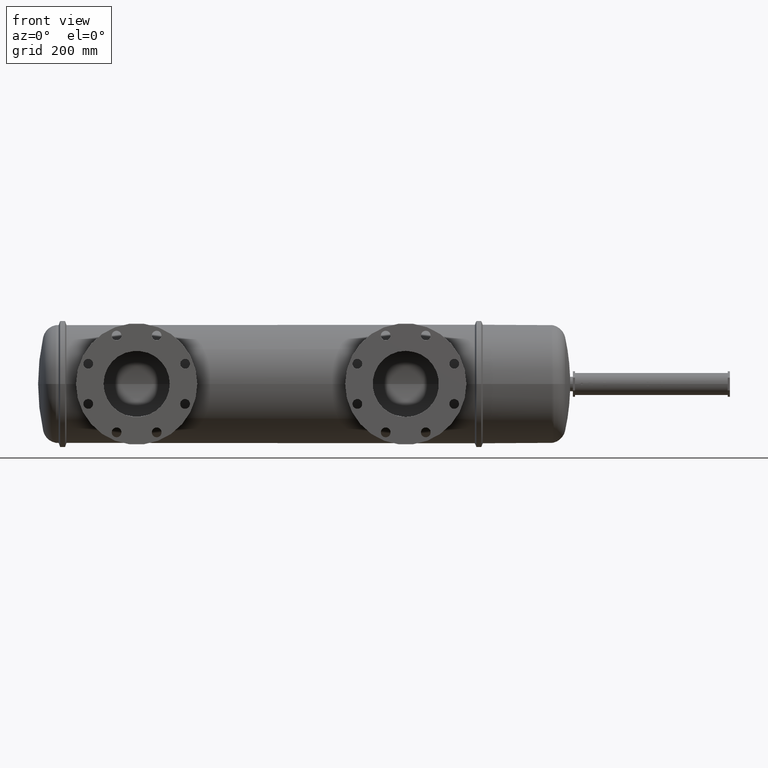
[diagram: clean part render]
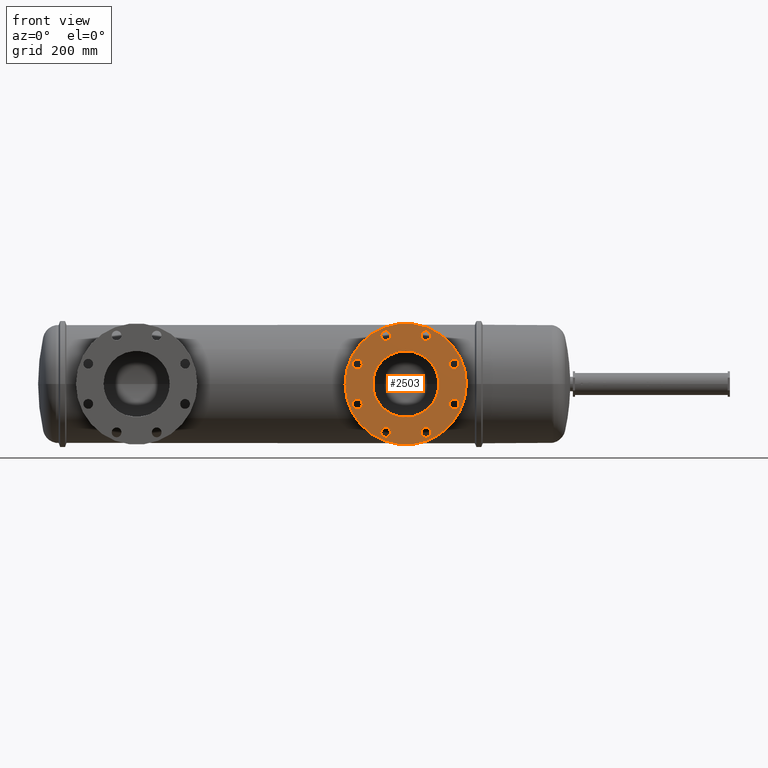
[diagram: same view with one face highlighted and labeled with its STEP entity id]
A machine part, front view. The second image highlights one B-rep face of the part: STEP entity #2503.
In plain terms, the highlighted planar face has unit normal (-0, 1, 0).
Its self-contained STEP definition (entity closure, byte-faithful):
#22 = ORIENTED_EDGE ( 'NONE', *, *, #6361, .F. ) ;
#100 = AXIS2_PLACEMENT_3D ( 'NONE', #6608, #6005, #212 ) ;
#106 = CARTESIAN_POINT ( 'NONE',  ( 35.15007573427045900, -10.37999999999999700, 4.388427779428623100 ) ) ;
#113 = AXIS2_PLACEMENT_3D ( 'NONE', #4492, #6167, #456 ) ;
#128 = FACE_BOUND ( 'NONE', #7385, .T. ) ;
#181 = CARTESIAN_POINT ( 'NONE',  ( 38.16075720996495600, -10.37999999999999700, 1.817746303734233400 ) ) ;
#193 = DIRECTION ( 'NONE',  ( 1.000000000000000000, 0.0000000000000000000, 0.0000000000000000000 ) ) ;
#203 = DIRECTION ( 'NONE',  ( 1.000000000000000000, 0.0000000000000000000, 0.0000000000000000000 ) ) ;
#212 = DIRECTION ( 'NONE',  ( 0.0000000000000000000, 0.0000000000000000000, 1.000000000000000000 ) ) ;
#267 = AXIS2_PLACEMENT_3D ( 'NONE', #106, #6988, #2313 ) ;
#282 = DIRECTION ( 'NONE',  ( 1.000000000000000000, 0.0000000000000000000, 0.0000000000000000000 ) ) ;
#303 = DIRECTION ( 'NONE',  ( 1.052735257674089800E-016, -1.000000000000000000, 0.0000000000000000000 ) ) ;
#314 = DIRECTION ( 'NONE',  ( 1.052735257674089800E-016, -1.000000000000000000, 0.0000000000000000000 ) ) ;
#320 = CIRCLE ( 'NONE', #7164, 0.4399999999999985600 ) ;
#347 = VERTEX_POINT ( 'NONE', #6941 ) ;
#387 = DIRECTION ( 'NONE',  ( 1.052735257674089800E-016, -1.000000000000000000, 0.0000000000000000000 ) ) ;
#414 = DIRECTION ( 'NONE',  ( 0.0000000000000000000, 0.0000000000000000000, 1.000000000000000000 ) ) ;
#453 = DIRECTION ( 'NONE',  ( 1.052735257674089800E-016, -1.000000000000000000, 0.0000000000000000000 ) ) ;
#456 = DIRECTION ( 'NONE',  ( 1.000000000000000000, 0.0000000000000000000, 0.0000000000000000000 ) ) ;
#459 = CARTESIAN_POINT ( 'NONE',  ( 34.71007573427046100, -10.37999999999999700, 4.388427779428623100 ) ) ;
#478 = FACE_BOUND ( 'NONE', #4754, .T. ) ;
#592 = VERTEX_POINT ( 'NONE', #4882 ) ;
#670 = FACE_BOUND ( 'NONE', #1909, .T. ) ;
#673 = EDGE_CURVE ( 'NONE', #3064, #2083, #6018, .T. ) ;
#732 = CARTESIAN_POINT ( 'NONE',  ( 28.50390165110774300, -10.38000000000000100, 1.817746303734104400 ) ) ;
#778 = AXIS2_PLACEMENT_3D ( 'NONE', #5083, #387, #2666 ) ;
#855 = CIRCLE ( 'NONE', #113, 0.4400000000000029400 ) ;
#874 = ORIENTED_EDGE ( 'NONE', *, *, #5406, .T. ) ;
#875 = CARTESIAN_POINT ( 'NONE',  ( 31.51458312680216200, -10.37999999999999700, 4.388427779428569800 ) ) ;
#942 = ORIENTED_EDGE ( 'NONE', *, *, #2409, .F. ) ;
#972 = EDGE_CURVE ( 'NONE', #5213, #3562, #7450, .T. ) ;
#976 = PLANE ( 'NONE',  #5619 ) ;
#978 = VERTEX_POINT ( 'NONE', #4019 ) ;
#996 = CARTESIAN_POINT ( 'NONE',  ( 0.0000000000000000000, -10.38000000000000100, 0.0000000000000000000 ) ) ;
#1000 = CARTESIAN_POINT ( 'NONE',  ( 33.33232943053631200, -10.38000000000000100, 0.0000000000000000000 ) ) ;
#1044 = CARTESIAN_POINT ( 'NONE',  ( 31.51458312680226500, -10.37999999999999700, -4.388427779428663000 ) ) ;
#1094 = EDGE_CURVE ( 'NONE', #3562, #5213, #2263, .T. ) ;
#1118 = ORIENTED_EDGE ( 'NONE', *, *, #3966, .F. ) ;
#1169 = DIRECTION ( 'NONE',  ( 1.000000000000000000, 0.0000000000000000000, 0.0000000000000000000 ) ) ;
#1184 = VERTEX_POINT ( 'NONE', #7339 ) ;
#1185 = AXIS2_PLACEMENT_3D ( 'NONE', #7074, #1839, #193 ) ;
#1208 = ORIENTED_EDGE ( 'NONE', *, *, #1316, .F. ) ;
#1217 = CIRCLE ( 'NONE', #6153, 0.4400000000000029400 ) ;
#1280 = FACE_BOUND ( 'NONE', #2457, .T. ) ;
#1295 = VERTEX_POINT ( 'NONE', #6772 ) ;
#1313 = VERTEX_POINT ( 'NONE', #5641 ) ;
#1316 = EDGE_CURVE ( 'NONE', #2590, #1313, #3040, .T. ) ;
#1337 = CARTESIAN_POINT ( 'NONE',  ( 28.94390165110778700, -10.38000000000000100, -1.817746303734255200 ) ) ;
#1453 = FACE_BOUND ( 'NONE', #6656, .T. ) ;
#1474 = CARTESIAN_POINT ( 'NONE',  ( 37.72075720996495100, -10.37999999999999700, 1.817746303734233400 ) ) ;
#1663 = AXIS2_PLACEMENT_3D ( 'NONE', #2989, #3636, #203 ) ;
#1745 = VERTEX_POINT ( 'NONE', #4068 ) ;
#1827 = CIRCLE ( 'NONE', #1663, 0.4400000000000029400 ) ;
#1828 = EDGE_CURVE ( 'NONE', #1295, #7146, #6654, .T. ) ;
#1839 = DIRECTION ( 'NONE',  ( 1.052735257674089800E-016, -1.000000000000000000, 0.0000000000000000000 ) ) ;
#1850 = AXIS2_PLACEMENT_3D ( 'NONE', #875, #303, #7165 ) ;
#1909 = EDGE_LOOP ( 'NONE', ( #6199, #4803 ) ) ;
#1978 = DIRECTION ( 'NONE',  ( 1.000000000000000000, 0.0000000000000000000, 0.0000000000000000000 ) ) ;
#1994 = CIRCLE ( 'NONE', #1185, 5.500000000000001800 ) ;
#2083 = VERTEX_POINT ( 'NONE', #6669 ) ;
#2087 = CIRCLE ( 'NONE', #2284, 0.4400000000000029400 ) ;
#2135 = CARTESIAN_POINT ( 'NONE',  ( 31.95458312680216700, -10.37999999999999700, 4.388427779428569800 ) ) ;
#2138 = CARTESIAN_POINT ( 'NONE',  ( 37.28075720996494600, -10.37999999999999700, 1.817746303734233400 ) ) ;
#2162 = FACE_BOUND ( 'NONE', #4948, .T. ) ;
#2239 = DIRECTION ( 'NONE',  ( 1.000000000000000000, 0.0000000000000000000, 0.0000000000000000000 ) ) ;
#2253 = ORIENTED_EDGE ( 'NONE', *, *, #5315, .F. ) ;
#2263 = CIRCLE ( 'NONE', #5180, 0.4400000000000029400 ) ;
#2284 = AXIS2_PLACEMENT_3D ( 'NONE', #5955, #4223, #6507 ) ;
#2313 = DIRECTION ( 'NONE',  ( 1.000000000000000000, 0.0000000000000000000, 0.0000000000000000000 ) ) ;
#2368 = CARTESIAN_POINT ( 'NONE',  ( 35.15007573427062200, -10.37999999999999700, -4.388427779428610600 ) ) ;
#2385 = CIRCLE ( 'NONE', #5759, 3.000000000000001800 ) ;
#2409 = EDGE_CURVE ( 'NONE', #978, #5878, #855, .T. ) ;
#2457 = EDGE_LOOP ( 'NONE', ( #3054, #22 ) ) ;
#2503 = ADVANCED_FACE ( 'NONE', ( #1453, #478, #1280, #6827, #2162, #3726, #670, #6645, #128, #4912 ), #976, .F. ) ;
#2590 = VERTEX_POINT ( 'NONE', #2135 ) ;
#2637 = VERTEX_POINT ( 'NONE', #5668 ) ;
#2666 = DIRECTION ( 'NONE',  ( 1.000000000000000000, 0.0000000000000000000, 0.0000000000000000000 ) ) ;
#2716 = CARTESIAN_POINT ( 'NONE',  ( 28.94390165110774800, -10.38000000000000100, 1.817746303734104400 ) ) ;
#2791 = CARTESIAN_POINT ( 'NONE',  ( 35.15007573427062200, -10.37999999999999700, -4.388427779428610600 ) ) ;
#2824 = DIRECTION ( 'NONE',  ( 1.052735257674089800E-016, -1.000000000000000000, 0.0000000000000000000 ) ) ;
#2841 = CIRCLE ( 'NONE', #4989, 0.4400000000000029400 ) ;
#2877 = CARTESIAN_POINT ( 'NONE',  ( 33.33232943053631200, -10.37999999999999700, 0.0000000000000000000 ) ) ;
#2989 = CARTESIAN_POINT ( 'NONE',  ( 28.94390165110774800, -10.38000000000000100, 1.817746303734104400 ) ) ;
#3019 = VERTEX_POINT ( 'NONE', #181 ) ;
#3040 = CIRCLE ( 'NONE', #5330, 0.4400000000000029400 ) ;
#3054 = ORIENTED_EDGE ( 'NONE', *, *, #6680, .F. ) ;
#3064 = VERTEX_POINT ( 'NONE', #6439 ) ;
#3195 = DIRECTION ( 'NONE',  ( 1.000000000000000000, 0.0000000000000000000, 0.0000000000000000000 ) ) ;
#3229 = AXIS2_PLACEMENT_3D ( 'NONE', #2716, #6236, #6897 ) ;
#3285 = ORIENTED_EDGE ( 'NONE', *, *, #1828, .F. ) ;
#3339 = EDGE_CURVE ( 'NONE', #592, #347, #6997, .T. ) ;
#3378 = CIRCLE ( 'NONE', #3410, 0.4400000000000029400 ) ;
#3410 = AXIS2_PLACEMENT_3D ( 'NONE', #1337, #3714, #282 ) ;
#3418 = ORIENTED_EDGE ( 'NONE', *, *, #6074, .F. ) ;
#3462 = DIRECTION ( 'NONE',  ( 1.000000000000000000, 0.0000000000000000000, 0.0000000000000000000 ) ) ;
#3480 = CARTESIAN_POINT ( 'NONE',  ( 31.51458312680216200, -10.37999999999999700, 4.388427779428569800 ) ) ;
#3508 = CARTESIAN_POINT ( 'NONE',  ( 31.95458312680226600, -10.37999999999999700, -4.388427779428663000 ) ) ;
#3537 = CARTESIAN_POINT ( 'NONE',  ( 33.33232943053631200, -10.38000000000000100, 3.000000000000001800 ) ) ;
#3562 = VERTEX_POINT ( 'NONE', #5526 ) ;
#3614 = EDGE_LOOP ( 'NONE', ( #5926, #4568 ) ) ;
#3636 = DIRECTION ( 'NONE',  ( 1.052735257674089800E-016, -1.000000000000000000, 0.0000000000000000000 ) ) ;
#3682 = DIRECTION ( 'NONE',  ( 1.000000000000000000, 0.0000000000000000000, 0.0000000000000000000 ) ) ;
#3714 = DIRECTION ( 'NONE',  ( 1.052735257674089800E-016, -1.000000000000000000, 0.0000000000000000000 ) ) ;
#3726 = FACE_BOUND ( 'NONE', #6230, .T. ) ;
#3758 = ORIENTED_EDGE ( 'NONE', *, *, #6017, .F. ) ;
#3776 = CARTESIAN_POINT ( 'NONE',  ( 35.15007573427045900, -10.37999999999999700, 4.388427779428623100 ) ) ;
#3831 = ORIENTED_EDGE ( 'NONE', *, *, #5622, .F. ) ;
#3834 = EDGE_CURVE ( 'NONE', #6228, #3019, #2087, .T. ) ;
#3872 = ORIENTED_EDGE ( 'NONE', *, *, #972, .F. ) ;
#3966 = EDGE_CURVE ( 'NONE', #3019, #6228, #4179, .T. ) ;
#3974 = CARTESIAN_POINT ( 'NONE',  ( 28.50390165110778200, -10.38000000000000100, -1.817746303734255200 ) ) ;
#3995 = CIRCLE ( 'NONE', #3229, 0.4400000000000029400 ) ;
#4006 = CIRCLE ( 'NONE', #1850, 0.4400000000000029400 ) ;
#4019 = CARTESIAN_POINT ( 'NONE',  ( 31.07458312680226000, -10.37999999999999700, -4.388427779428663000 ) ) ;
#4068 = CARTESIAN_POINT ( 'NONE',  ( 37.28075720996501700, -10.37999999999999700, -1.817746303734125300 ) ) ;
#4070 = DIRECTION ( 'NONE',  ( 1.052735257674089800E-016, -1.000000000000000000, 0.0000000000000000000 ) ) ;
#4149 = DIRECTION ( 'NONE',  ( 1.000000000000000000, 0.0000000000000000000, 0.0000000000000000000 ) ) ;
#4179 = CIRCLE ( 'NONE', #5131, 0.4400000000000029400 ) ;
#4223 = DIRECTION ( 'NONE',  ( 1.052735257674089800E-016, -1.000000000000000000, 0.0000000000000000000 ) ) ;
#4244 = ORIENTED_EDGE ( 'NONE', *, *, #3834, .F. ) ;
#4258 = ORIENTED_EDGE ( 'NONE', *, *, #5158, .T. ) ;
#4324 = VERTEX_POINT ( 'NONE', #732 ) ;
#4492 = CARTESIAN_POINT ( 'NONE',  ( 31.51458312680226500, -10.37999999999999700, -4.388427779428663000 ) ) ;
#4568 = ORIENTED_EDGE ( 'NONE', *, *, #3339, .T. ) ;
#4587 = DIRECTION ( 'NONE',  ( 1.052735257674089800E-016, -1.000000000000000000, 0.0000000000000000000 ) ) ;
#4594 = ORIENTED_EDGE ( 'NONE', *, *, #1094, .F. ) ;
#4595 = DIRECTION ( 'NONE',  ( 1.052735257674089800E-016, -1.000000000000000000, 0.0000000000000000000 ) ) ;
#4657 = VERTEX_POINT ( 'NONE', #5239 ) ;
#4754 = EDGE_LOOP ( 'NONE', ( #1208, #3758 ) ) ;
#4803 = ORIENTED_EDGE ( 'NONE', *, *, #6722, .F. ) ;
#4882 = CARTESIAN_POINT ( 'NONE',  ( 27.83232943053631200, -10.37999999999999700, 6.735557395310442000E-016 ) ) ;
#4912 = FACE_OUTER_BOUND ( 'NONE', #3614, .T. ) ;
#4931 = CIRCLE ( 'NONE', #5996, 0.4399999999999985600 ) ;
#4948 = EDGE_LOOP ( 'NONE', ( #3831, #942 ) ) ;
#4989 = AXIS2_PLACEMENT_3D ( 'NONE', #2368, #6436, #4149 ) ;
#5083 = CARTESIAN_POINT ( 'NONE',  ( 28.94390165110778700, -10.38000000000000100, -1.817746303734255200 ) ) ;
#5086 = DIRECTION ( 'NONE',  ( 1.000000000000000000, 0.0000000000000000000, 0.0000000000000000000 ) ) ;
#5088 = DIRECTION ( 'NONE',  ( 0.0000000000000000000, 0.0000000000000000000, 1.000000000000000000 ) ) ;
#5131 = AXIS2_PLACEMENT_3D ( 'NONE', #1474, #314, #3195 ) ;
#5158 = EDGE_CURVE ( 'NONE', #6849, #2637, #2385, .T. ) ;
#5180 = AXIS2_PLACEMENT_3D ( 'NONE', #3776, #7300, #1978 ) ;
#5213 = VERTEX_POINT ( 'NONE', #459 ) ;
#5239 = CARTESIAN_POINT ( 'NONE',  ( 38.16075720996501300, -10.37999999999999700, -1.817746303734125300 ) ) ;
#5315 = EDGE_CURVE ( 'NONE', #2083, #3064, #2841, .T. ) ;
#5330 = AXIS2_PLACEMENT_3D ( 'NONE', #3480, #4587, #2239 ) ;
#5406 = EDGE_CURVE ( 'NONE', #2637, #6849, #5667, .T. ) ;
#5526 = CARTESIAN_POINT ( 'NONE',  ( 35.59007573427046400, -10.37999999999999700, 4.388427779428623100 ) ) ;
#5599 = ORIENTED_EDGE ( 'NONE', *, *, #673, .F. ) ;
#5613 = AXIS2_PLACEMENT_3D ( 'NONE', #2791, #4595, #5700 ) ;
#5619 = AXIS2_PLACEMENT_3D ( 'NONE', #996, #6207, #5088 ) ;
#5622 = EDGE_CURVE ( 'NONE', #5878, #978, #1217, .T. ) ;
#5641 = CARTESIAN_POINT ( 'NONE',  ( 31.07458312680216000, -10.37999999999999700, 4.388427779428569800 ) ) ;
#5667 = CIRCLE ( 'NONE', #100, 3.000000000000001800 ) ;
#5668 = CARTESIAN_POINT ( 'NONE',  ( 33.33232943053631200, -10.38000000000000100, -3.000000000000001800 ) ) ;
#5700 = DIRECTION ( 'NONE',  ( 1.000000000000000000, 0.0000000000000000000, 0.0000000000000000000 ) ) ;
#5759 = AXIS2_PLACEMENT_3D ( 'NONE', #1000, #6215, #414 ) ;
#5793 = CARTESIAN_POINT ( 'NONE',  ( 37.72075720996501500, -10.37999999999999700, -1.817746303734125300 ) ) ;
#5808 = AXIS2_PLACEMENT_3D ( 'NONE', #2877, #2824, #3462 ) ;
#5878 = VERTEX_POINT ( 'NONE', #3508 ) ;
#5926 = ORIENTED_EDGE ( 'NONE', *, *, #6896, .T. ) ;
#5955 = CARTESIAN_POINT ( 'NONE',  ( 37.72075720996495100, -10.37999999999999700, 1.817746303734233400 ) ) ;
#5996 = AXIS2_PLACEMENT_3D ( 'NONE', #5793, #4070, #1169 ) ;
#6005 = DIRECTION ( 'NONE',  ( -0.0000000000000000000, 1.000000000000000000, -0.0000000000000000000 ) ) ;
#6017 = EDGE_CURVE ( 'NONE', #1313, #2590, #4006, .T. ) ;
#6018 = CIRCLE ( 'NONE', #5613, 0.4400000000000029400 ) ;
#6074 = EDGE_CURVE ( 'NONE', #7146, #1295, #3378, .T. ) ;
#6153 = AXIS2_PLACEMENT_3D ( 'NONE', #1044, #453, #5086 ) ;
#6167 = DIRECTION ( 'NONE',  ( 1.052735257674089800E-016, -1.000000000000000000, 0.0000000000000000000 ) ) ;
#6199 = ORIENTED_EDGE ( 'NONE', *, *, #6981, .F. ) ;
#6207 = DIRECTION ( 'NONE',  ( -0.0000000000000000000, 1.000000000000000000, 0.0000000000000000000 ) ) ;
#6215 = DIRECTION ( 'NONE',  ( -0.0000000000000000000, 1.000000000000000000, -0.0000000000000000000 ) ) ;
#6228 = VERTEX_POINT ( 'NONE', #2138 ) ;
#6230 = EDGE_LOOP ( 'NONE', ( #5599, #2253 ) ) ;
#6236 = DIRECTION ( 'NONE',  ( 1.052735257674089800E-016, -1.000000000000000000, 0.0000000000000000000 ) ) ;
#6327 = EDGE_LOOP ( 'NONE', ( #1118, #4244 ) ) ;
#6361 = EDGE_CURVE ( 'NONE', #4324, #1184, #1827, .T. ) ;
#6436 = DIRECTION ( 'NONE',  ( 1.052735257674089800E-016, -1.000000000000000000, 0.0000000000000000000 ) ) ;
#6439 = CARTESIAN_POINT ( 'NONE',  ( 35.59007573427062700, -10.37999999999999700, -4.388427779428610600 ) ) ;
#6507 = DIRECTION ( 'NONE',  ( 1.000000000000000000, 0.0000000000000000000, 0.0000000000000000000 ) ) ;
#6551 = CARTESIAN_POINT ( 'NONE',  ( 37.72075720996501500, -10.37999999999999700, -1.817746303734125300 ) ) ;
#6608 = CARTESIAN_POINT ( 'NONE',  ( 33.33232943053631200, -10.38000000000000100, 0.0000000000000000000 ) ) ;
#6645 = FACE_BOUND ( 'NONE', #6327, .T. ) ;
#6654 = CIRCLE ( 'NONE', #778, 0.4400000000000029400 ) ;
#6656 = EDGE_LOOP ( 'NONE', ( #4258, #874 ) ) ;
#6669 = CARTESIAN_POINT ( 'NONE',  ( 34.71007573427061700, -10.37999999999999700, -4.388427779428610600 ) ) ;
#6680 = EDGE_CURVE ( 'NONE', #1184, #4324, #3995, .T. ) ;
#6722 = EDGE_CURVE ( 'NONE', #1745, #4657, #4931, .T. ) ;
#6772 = CARTESIAN_POINT ( 'NONE',  ( 29.38390165110778800, -10.38000000000000100, -1.817746303734255200 ) ) ;
#6827 = FACE_BOUND ( 'NONE', #7051, .T. ) ;
#6849 = VERTEX_POINT ( 'NONE', #3537 ) ;
#6896 = EDGE_CURVE ( 'NONE', #347, #592, #1994, .T. ) ;
#6897 = DIRECTION ( 'NONE',  ( 1.000000000000000000, 0.0000000000000000000, 0.0000000000000000000 ) ) ;
#6941 = CARTESIAN_POINT ( 'NONE',  ( 38.83232943053631900, -10.37999999999999700, 0.0000000000000000000 ) ) ;
#6981 = EDGE_CURVE ( 'NONE', #4657, #1745, #320, .T. ) ;
#6988 = DIRECTION ( 'NONE',  ( 1.052735257674089800E-016, -1.000000000000000000, 0.0000000000000000000 ) ) ;
#6997 = CIRCLE ( 'NONE', #5808, 5.500000000000001800 ) ;
#7051 = EDGE_LOOP ( 'NONE', ( #3285, #3418 ) ) ;
#7074 = CARTESIAN_POINT ( 'NONE',  ( 33.33232943053631200, -10.37999999999999700, 0.0000000000000000000 ) ) ;
#7146 = VERTEX_POINT ( 'NONE', #3974 ) ;
#7156 = DIRECTION ( 'NONE',  ( 1.052735257674089800E-016, -1.000000000000000000, 0.0000000000000000000 ) ) ;
#7164 = AXIS2_PLACEMENT_3D ( 'NONE', #6551, #7156, #3682 ) ;
#7165 = DIRECTION ( 'NONE',  ( 1.000000000000000000, 0.0000000000000000000, 0.0000000000000000000 ) ) ;
#7300 = DIRECTION ( 'NONE',  ( 1.052735257674089800E-016, -1.000000000000000000, 0.0000000000000000000 ) ) ;
#7339 = CARTESIAN_POINT ( 'NONE',  ( 29.38390165110774900, -10.38000000000000100, 1.817746303734104400 ) ) ;
#7385 = EDGE_LOOP ( 'NONE', ( #4594, #3872 ) ) ;
#7450 = CIRCLE ( 'NONE', #267, 0.4400000000000029400 ) ;